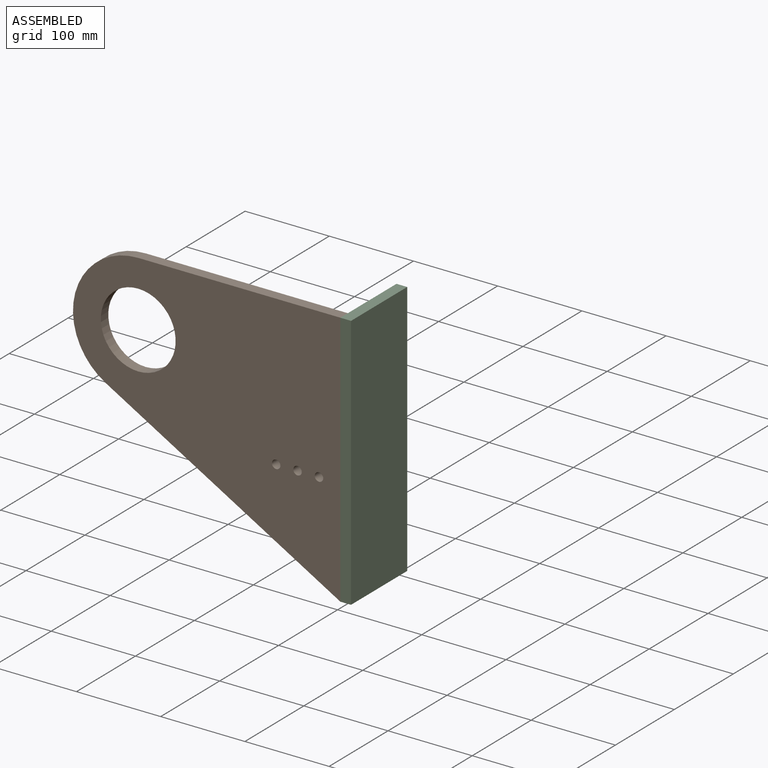
[diagram: assembled view]
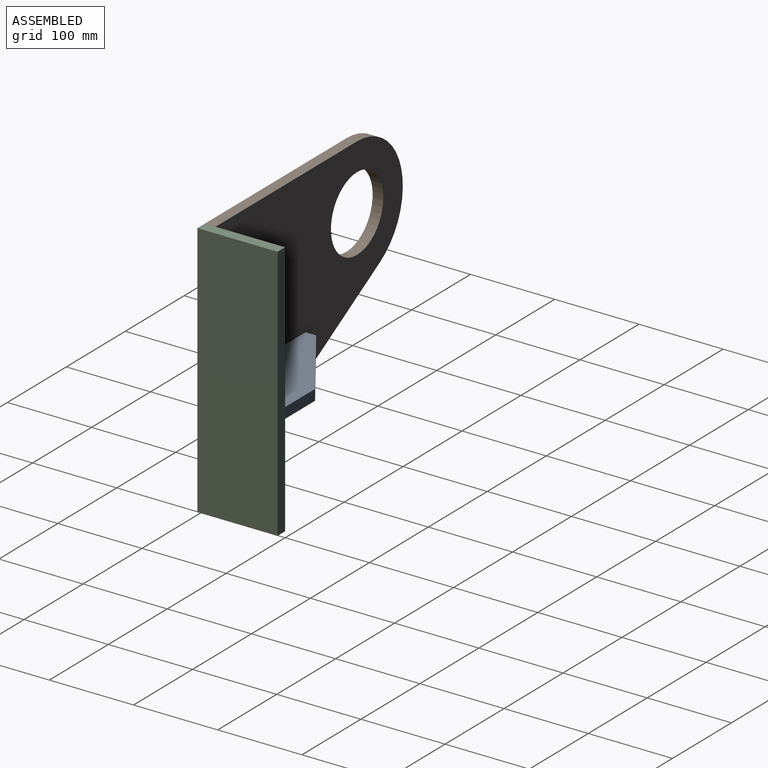
[diagram: assembled view, second angle]
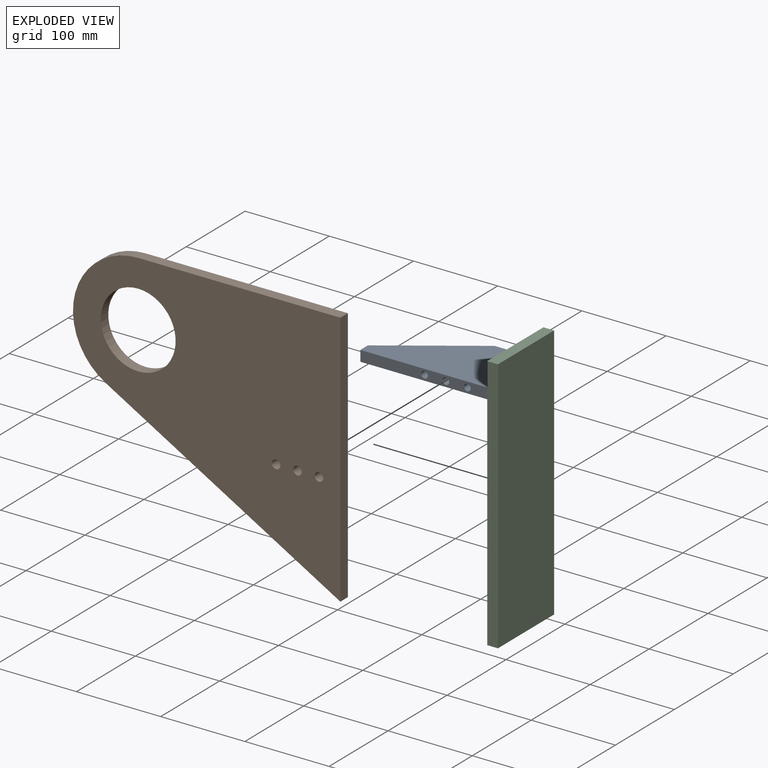
[diagram: exploded view]
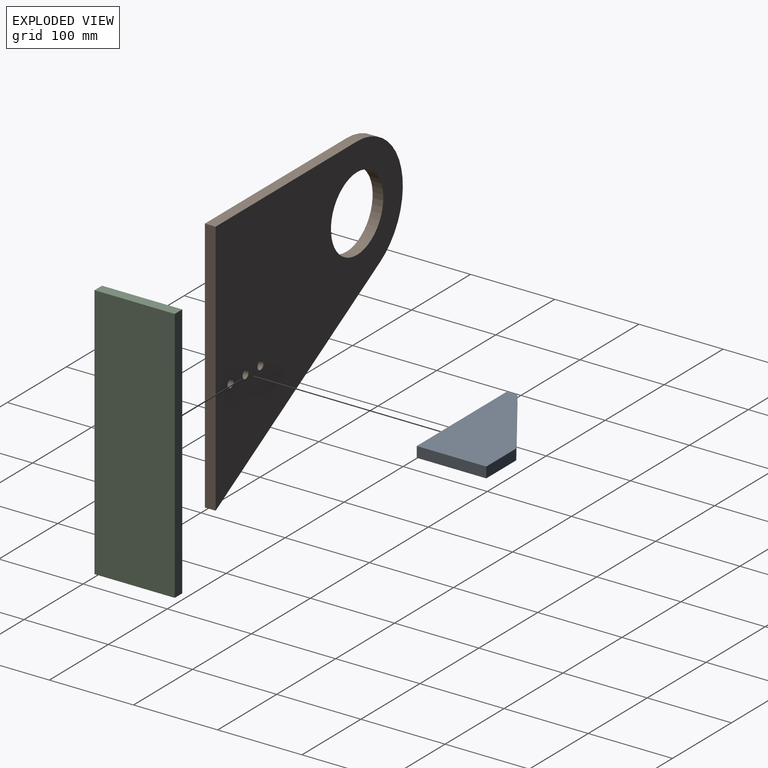
[diagram: exploded view, second angle]
ASSEMBLY  parts=3 mates=2
PART A: 13 faces, bbox 152.4x82.6x12.7 mm
  f0: plane 12.7x12.7mm, normal (-1,0,0), area 161.3mm2, adj f3,f4,f5,f6
  f1: plane 50.8x12.7mm, normal (0,1,0), area 645.2mm2, adj f2,f3,f4,f6
  f2: plane 82.55x12.7mm, normal (1,0,0), area 1048.4mm2, adj f1,f3,f4,f5
  f3: plane 152.4x82.55mm, normal (0,0,-1), area 9032.2mm2, adj f0,f1,f2,f5,f6
  f4: plane 152.4x82.55mm, normal (0,0,1), area 9032.2mm2, adj f0,f1,f2,f5,f6
  f5: plane 152.4x12.7mm, normal (0,-1,0), area 1787mm2, adj f0,f2,f3,f4,f8,f10,f12
  f6: plane 101.6x69.85mm, normal (-0.57,0.82,0), area 1565.8mm2, adj f0,f1,f3,f4
  f7: cone r=0mm half-angle=59deg, axis (0,-1,0), area 57.7mm2, adj f8
  f8: cylinder r=3.97mm len=12.7mm, axis (0,-1,0), area 316.7mm2, adj f5,f7
  f9: cone r=0mm half-angle=59deg, axis (0,-1,0), area 57.7mm2, adj f10
  f10: cylinder r=3.97mm len=12.7mm, axis (0,-1,0), area 316.7mm2, adj f5,f9
  f11: cone r=0mm half-angle=59deg, axis (0,-1,0), area 57.7mm2, adj f12
  f12: cylinder r=3.97mm len=12.7mm, axis (0,-1,0), area 316.7mm2, adj f5,f11
PART B: 10 faces, bbox 317.5x12.7x304.8 mm
  f0: plane 240.03x12.7mm, normal (0,0,1), area 3048.4mm2, adj f1,f3,f5,f6
  f1: cylinder r=77.47mm len=144.63mm, axis (0,1,0), area 2577.6mm2, adj f0,f2,f5,f6
  f2: plane 278.64x160.17mm, normal (-0.5,0,-0.87), area 4081.7mm2, adj f1,f3,f5,f6
  f3: plane 304.8x12.7mm, normal (1,0,0), area 3871mm2, adj f0,f2,f5,f6
  f4: cylinder r=44.45mm len=88.9mm, axis (0,1,0), area 3547mm2, adj f5,f6
  f5: plane 317.5x304.8mm, normal (0,-1,0), area 59742.2mm2, adj f0,f1,f2,f3,f4,f7,f8,f9
  f6: plane 317.5x304.8mm, normal (0,1,0), area 59742.2mm2, adj f0,f1,f2,f3,f4,f7,f8,f9
  f7: cylinder r=5.04mm len=12.7mm, axis (0,-1,0), area 402.3mm2, adj f5,f6
  f8: cylinder r=5.04mm len=12.7mm, axis (0,-1,0), area 402.3mm2, adj f5,f6
  f9: cylinder r=5.04mm len=12.7mm, axis (0,-1,0), area 402.3mm2, adj f5,f6
PART C: 6 faces, bbox 12.7x95.3x304.8 mm
  f0: plane 95.25x12.7mm, normal (0,0,1), area 1209.7mm2, adj f1,f3,f4,f5
  f1: plane 304.8x12.7mm, normal (0,-1,0), area 3871mm2, adj f0,f2,f4,f5
  f2: plane 95.25x12.7mm, normal (0,0,-1), area 1209.7mm2, adj f1,f3,f4,f5
  f3: plane 304.8x12.7mm, normal (0,1,0), area 3871mm2, adj f0,f2,f4,f5
  f4: plane 304.8x95.25mm, normal (1,0,0), area 29032.2mm2, adj f0,f1,f2,f3
  f5: plane 304.8x95.25mm, normal (-1,0,0), area 29032.2mm2, adj f0,f1,f2,f3
PLACE A t=(-240.03,-82.55,304.8)mm
PLACE B t=(-240.03,-82.55,304.8)mm
PLACE C t=(-240.03,-82.55,304.8)mm
MATE fastened B.f3 <-> C.f5  axis (1,0,0) through (0,-95.25,304.8)mm
MATE fastened A.f7 <-> B.f9  axis (0,-1,0) through (-25.4,-82.55,127)mm
